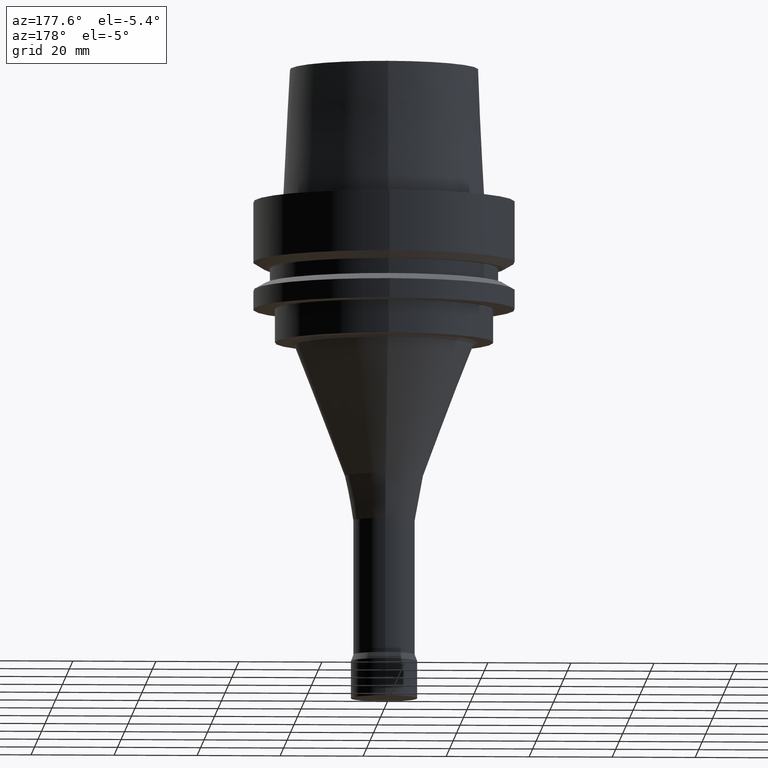
[diagram: clean part render]
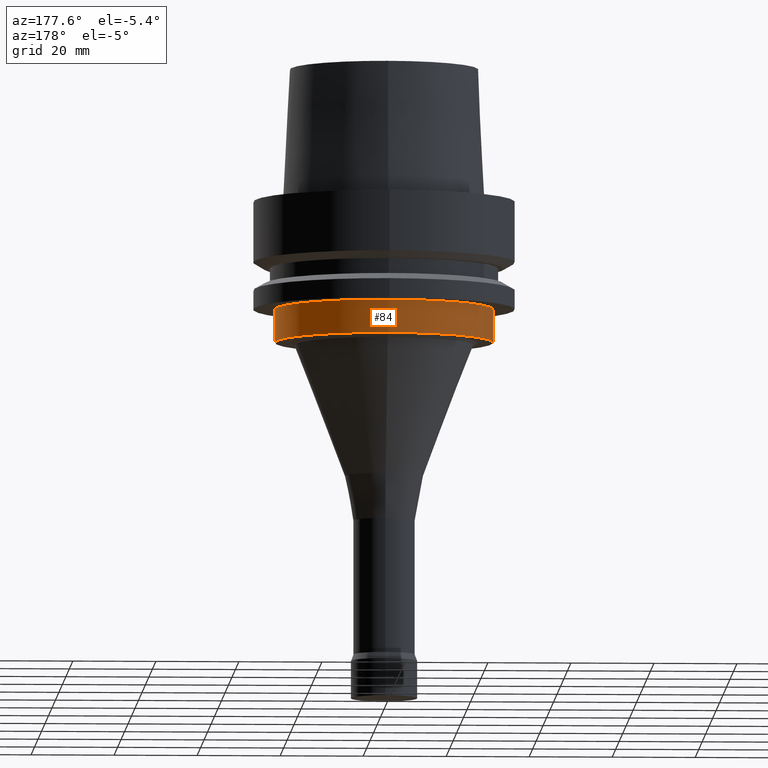
[diagram: same view with one face highlighted and labeled with its STEP entity id]
A machine part, auxiliary view. The second image highlights one B-rep face of the part: STEP entity #84.
In plain terms, the highlighted cylindrical surface (bore or boss wall) has radius 26.3 mm, axis along (-0, -0, 1).
Its self-contained STEP definition (entity closure, byte-faithful):
#84=ADVANCED_FACE('',(#123,#124),#125,.T.);
#123=FACE_BOUND('',#181,.T.);
#124=FACE_BOUND('',#182,.T.);
#125=CYLINDRICAL_SURFACE('',#183,26.3);
#181=EDGE_LOOP('',(#257));
#182=EDGE_LOOP('',(#258));
#183=AXIS2_PLACEMENT_3D('',#259,#260,#261);
#257=ORIENTED_EDGE('',*,*,#320,.F.);
#258=ORIENTED_EDGE('',*,*,#319,.T.);
#259=CARTESIAN_POINT('',(1.83697019872103E-015,3.67394039744206E-015,-30.0));
#260=DIRECTION('',(-6.12323399573677E-017,-1.22464679914735E-016,1.0));
#261=DIRECTION('',(-1.23259516440783E-032,1.0,1.22464679914735E-016));
#319=EDGE_CURVE('',#347,#347,#348,.T.);
#320=EDGE_CURVE('',#349,#349,#350,.T.);
#347=VERTEX_POINT('',#385);
#348=CIRCLE('',#386,26.3);
#349=VERTEX_POINT('',#387);
#350=CIRCLE('',#388,26.3);
#385=CARTESIAN_POINT('',(1.59204083889156E-015,26.3,-26.0));
#386=AXIS2_PLACEMENT_3D('',#432,#433,#434);
#387=CARTESIAN_POINT('',(2.0818995585505E-015,26.3,-34.0));
#388=AXIS2_PLACEMENT_3D('',#435,#436,#437);
#432=CARTESIAN_POINT('',(1.59204083889156E-015,3.18408167778312E-015,-26.0));
#433=DIRECTION('',(6.12323399573677E-017,1.22464679914735E-016,-1.0));
#434=DIRECTION('',(-1.23259516440783E-032,1.0,1.22464679914735E-016));
#435=CARTESIAN_POINT('',(2.0818995585505E-015,4.163799117101E-015,-34.0));
#436=DIRECTION('',(6.12323399573677E-017,1.22464679914735E-016,-1.0));
#437=DIRECTION('',(-1.23259516440783E-032,1.0,1.22464679914735E-016));